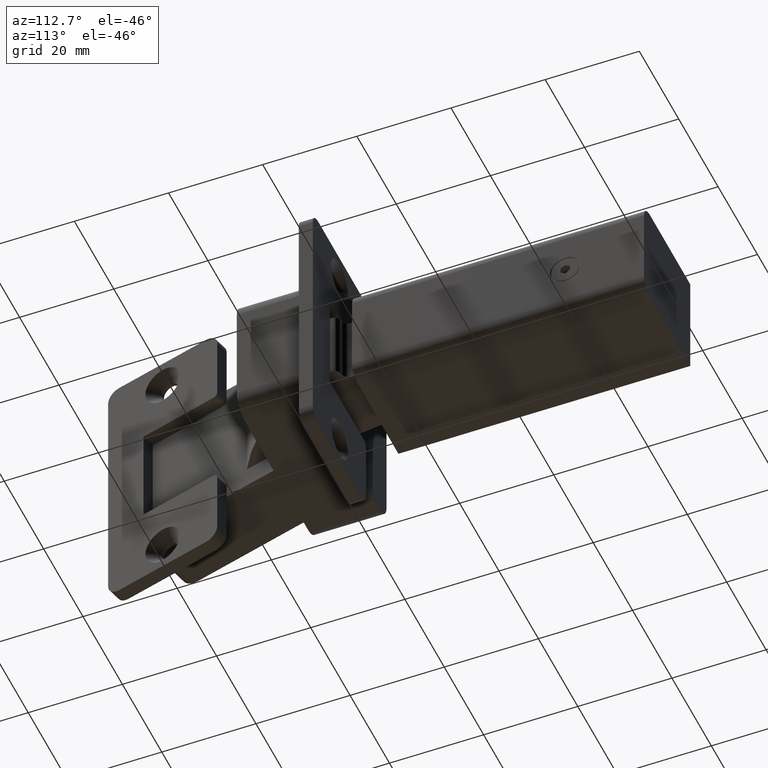
[diagram: clean part render]
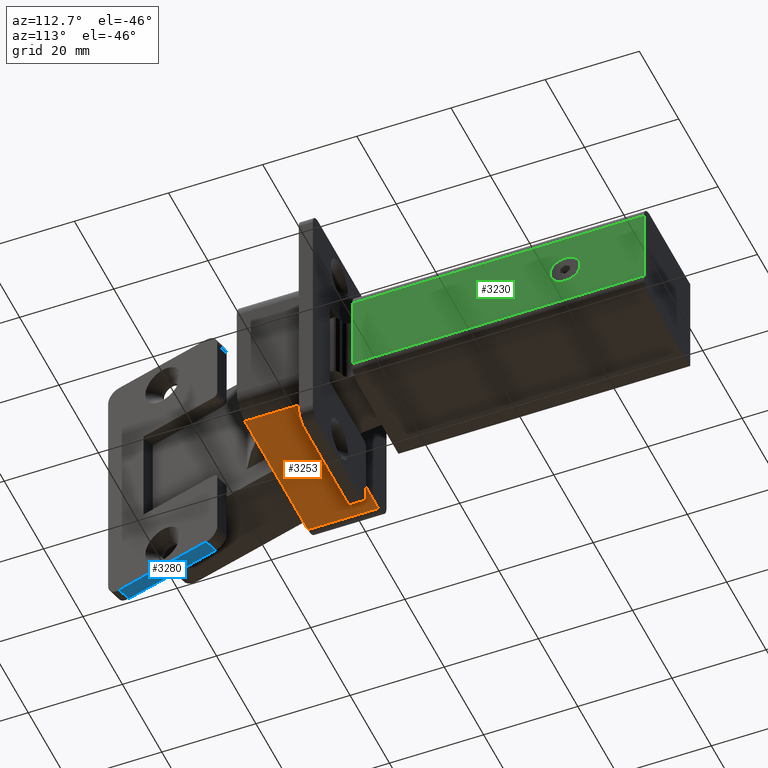
[diagram: same view with three faces highlighted in distinct colors, each labeled with its STEP entity id]
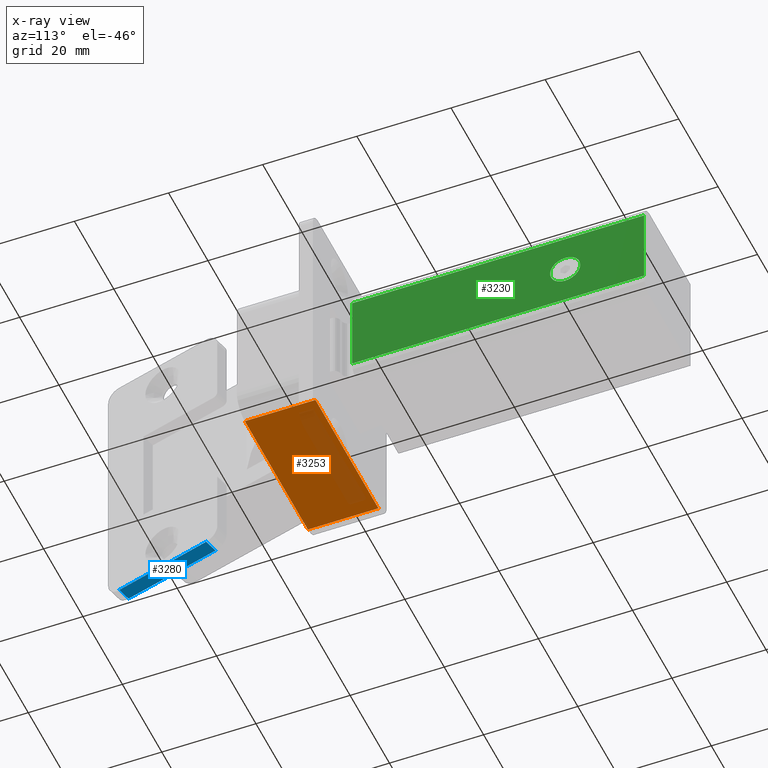
[diagram: x-ray of the same camera — body ghosted, the three highlighted faces saturated]
A machine part, auxiliary view with three faces highlighted in distinct colors.
The next image is the same camera in x-ray (body ghosted, the three faces saturated) — at least one of them is partly hidden behind the body in this view.
Their STEP definitions:

[orange] entity #3253 — the highlighted planar face has unit normal (0, 0, 1).
#323=FACE_OUTER_BOUND('',#515,.T.);
#515=EDGE_LOOP('',(#2571,#2572,#2573,#2574));
#775=LINE('',#5037,#1123);
#780=LINE('',#5049,#1128);
#789=LINE('',#5078,#1137);
#790=LINE('',#5080,#1138);
#1123=VECTOR('',#4071,1.);
#1128=VECTOR('',#4082,1.);
#1137=VECTOR('',#4113,1.);
#1138=VECTOR('',#4116,1.);
#1451=VERTEX_POINT('',#5034);
#1452=VERTEX_POINT('',#5036);
#1456=VERTEX_POINT('',#5048);
#1465=VERTEX_POINT('',#5076);
#1840=EDGE_CURVE('',#1451,#1452,#775,.T.);
#1846=EDGE_CURVE('',#1452,#1456,#780,.T.);
#1861=EDGE_CURVE('',#1456,#1465,#789,.T.);
#1862=EDGE_CURVE('',#1465,#1451,#790,.T.);
#2571=ORIENTED_EDGE('',*,*,#1840,.F.);
#2572=ORIENTED_EDGE('',*,*,#1862,.F.);
#2573=ORIENTED_EDGE('',*,*,#1861,.F.);
#2574=ORIENTED_EDGE('',*,*,#1846,.F.);
#3104=PLANE('',#3492);
#3253=ADVANCED_FACE('',(#323),#3104,.F.);
#3492=AXIS2_PLACEMENT_3D('',#5079,#4114,#4115);
#4071=DIRECTION('',(1.48769885299771E-14,-1.,0.));
#4082=DIRECTION('',(1.,0.,0.));
#4113=DIRECTION('',(-5.87585535782864E-14,1.,0.));
#4114=DIRECTION('center_axis',(0.,0.,1.));
#4115=DIRECTION('ref_axis',(-0.17364817766696,0.984807753012203,0.));
#4116=DIRECTION('',(-1.,-1.8846035843012E-14,0.));
#5034=CARTESIAN_POINT('',(-9.00153241787518,-21.0033611097591,-15.1000000000043));
#5036=CARTESIAN_POINT('',(-9.00153241787484,-36.0033611097655,-15.1000000000043));
#5037=CARTESIAN_POINT('',(-9.00153241787507,-22.8154430439614,-15.1000000000043));
#5048=CARTESIAN_POINT('',(22.9984675821255,-36.0033611097654,-15.1000000000043));
#5049=CARTESIAN_POINT('',(-0.620465665740994,-36.0033611097655,-15.1000000000043));
#5076=CARTESIAN_POINT('',(22.9984675821247,-21.0033611097585,-15.1000000000043));
#5078=CARTESIAN_POINT('',(22.9984675821252,-30.3154430439596,-15.1000000000043));
#5079=CARTESIAN_POINT('Origin',(-8.47432206880148,-24.6275249781629,-15.1000000000043));
#5080=CARTESIAN_POINT('',(58.4645186030574,-21.0033611097577,-15.1000000000043));

[blue] entity #3280 — the highlighted planar face has unit normal (0, -0, -1).
#350=FACE_OUTER_BOUND('',#547,.T.);
#547=EDGE_LOOP('',(#2726,#2727,#2728,#2729));
#819=LINE('',#5163,#1167);
#830=LINE('',#5203,#1178);
#842=LINE('',#5236,#1190);
#847=LINE('',#5246,#1195);
#1167=VECTOR('',#4191,1.);
#1178=VECTOR('',#4226,1.);
#1190=VECTOR('',#4264,1.);
#1195=VECTOR('',#4279,1.);
#1495=VERTEX_POINT('',#5160);
#1496=VERTEX_POINT('',#5162);
#1512=VERTEX_POINT('',#5200);
#1513=VERTEX_POINT('',#5202);
#1902=EDGE_CURVE('',#1495,#1496,#819,.F.);
#1922=EDGE_CURVE('',#1512,#1513,#830,.T.);
#1940=EDGE_CURVE('',#1513,#1495,#842,.T.);
#1945=EDGE_CURVE('',#1496,#1512,#847,.T.);
#2726=ORIENTED_EDGE('',*,*,#1945,.F.);
#2727=ORIENTED_EDGE('',*,*,#1902,.F.);
#2728=ORIENTED_EDGE('',*,*,#1940,.F.);
#2729=ORIENTED_EDGE('',*,*,#1922,.F.);
#3118=PLANE('',#3545);
#3280=ADVANCED_FACE('',(#350),#3118,.T.);
#3545=AXIS2_PLACEMENT_3D('',#5245,#4277,#4278);
#4191=DIRECTION('',(0.257422453609982,0.966298960145056,0.));
#4226=DIRECTION('',(0.257422453609982,0.966298960145056,0.));
#4264=DIRECTION('',(-0.966298960145045,0.257422453610022,-6.08871628134609E-14));
#4277=DIRECTION('center_axis',(5.88352021128299E-14,-1.56737228447915E-14,
-1.));
#4278=DIRECTION('ref_axis',(-0.257422453609982,-0.966298960145056,0.));
#4279=DIRECTION('',(0.966298960145069,-0.257422453609935,6.08871628134609E-14));
#5160=CARTESIAN_POINT('',(4.6521331159712,-49.9070228450197,-28.5000000000001));
#5162=CARTESIAN_POINT('',(-0.882449635511762,-70.6824504838902,-28.5000000000001));
#5163=CARTESIAN_POINT('',(3.30066523451853,-54.9800923857825,-28.5000000000001));
#5200=CARTESIAN_POINT('',(2.01644724492292,-71.4547178447198,-28.4999999999999));
#5202=CARTESIAN_POINT('',(7.55102999640565,-50.6792902058497,-28.4999999999999));
#5203=CARTESIAN_POINT('',(6.56448648902904,-54.3825256926817,-28.4999999999999));
#5236=CARTESIAN_POINT('',(5.32872569310291,-50.087267395085,-28.5));
#5245=CARTESIAN_POINT('Origin',(5.39308130650545,-49.8456926550485,-28.5));
#5246=CARTESIAN_POINT('',(0.18063498964932,-70.965656679789,-28.5));

[green] entity #3230 — the highlighted planar face has unit normal (1, 0, 0).
#108=FACE_BOUND('',#491,.T.);
#159=CIRCLE('',#3442,3.20020000001123);
#300=FACE_OUTER_BOUND('',#490,.T.);
#490=EDGE_LOOP('',(#2456,#2457,#2458,#2459));
#491=EDGE_LOOP('',(#2460));
#731=LINE('',#4932,#1079);
#756=LINE('',#4986,#1104);
#757=LINE('',#4989,#1105);
#758=LINE('',#4990,#1106);
#1079=VECTOR('',#3961,1.);
#1104=VECTOR('',#4012,1.);
#1105=VECTOR('',#4015,1.);
#1106=VECTOR('',#4016,1.);
#1416=VERTEX_POINT('',#4914);
#1423=VERTEX_POINT('',#4929);
#1424=VERTEX_POINT('',#4931);
#1440=VERTEX_POINT('',#4984);
#1441=VERTEX_POINT('',#4988);
#1782=EDGE_CURVE('',#1416,#1416,#159,.T.);
#1790=EDGE_CURVE('',#1423,#1424,#731,.T.);
#1817=EDGE_CURVE('',#1440,#1423,#756,.T.);
#1818=EDGE_CURVE('',#1424,#1441,#757,.T.);
#1819=EDGE_CURVE('',#1441,#1440,#758,.F.);
#2456=ORIENTED_EDGE('',*,*,#1818,.F.);
#2457=ORIENTED_EDGE('',*,*,#1790,.F.);
#2458=ORIENTED_EDGE('',*,*,#1817,.F.);
#2459=ORIENTED_EDGE('',*,*,#1819,.F.);
#2460=ORIENTED_EDGE('',*,*,#1782,.T.);
#3088=PLANE('',#3458);
#3230=ADVANCED_FACE('',(#300,#108),#3088,.T.);
#3442=AXIS2_PLACEMENT_3D('',#4915,#3949,#3950);
#3458=AXIS2_PLACEMENT_3D('',#4987,#4013,#4014);
#3949=DIRECTION('center_axis',(-1.,0.,-7.10542735761128E-15));
#3950=DIRECTION('ref_axis',(0.,0.,1.));
#3961=DIRECTION('',(7.10542735761128E-15,0.,-1.));
#4012=DIRECTION('',(0.,1.,0.));
#4013=DIRECTION('center_axis',(1.,0.,7.10542735761128E-15));
#4014=DIRECTION('ref_axis',(7.10542735761128E-15,0.,-1.));
#4015=DIRECTION('',(0.,-1.,0.));
#4016=DIRECTION('',(7.10542735761128E-15,0.,-1.));
#4914=CARTESIAN_POINT('',(23.4999999999999,32.2500000000002,-3.20020000001131));
#4915=CARTESIAN_POINT('Origin',(23.4999999999999,32.2500000000002,-7.8159700933611E-14));
#4929=CARTESIAN_POINT('',(23.4999999999999,48.999999999998,8.49999999999232));
#4931=CARTESIAN_POINT('',(23.5,48.999999999998,-8.49999999998454));
#4932=CARTESIAN_POINT('',(23.4999999999999,48.999999999998,3.99999999999814));
#4984=CARTESIAN_POINT('',(23.4999999999999,-13.0000000000019,8.49999999999232));
#4986=CARTESIAN_POINT('',(23.4999999999999,-14.1899529436373,8.49999999999232));
#4987=CARTESIAN_POINT('Origin',(23.4999999999999,-20.1899529436373,8.49999999999232));
#4988=CARTESIAN_POINT('',(23.5,-13.0000000000019,-8.49999999998454));
#4989=CARTESIAN_POINT('',(23.5,-14.1899529436373,-8.49999999998454));
#4990=CARTESIAN_POINT('',(23.4999999999998,-13.0000000000019,16.7499999999866));